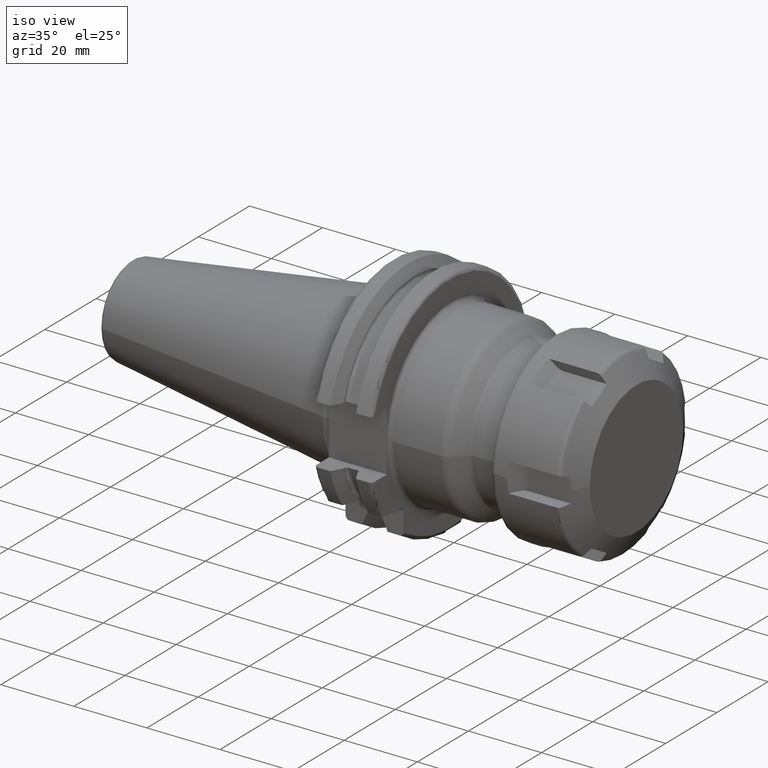
[diagram: clean part render]
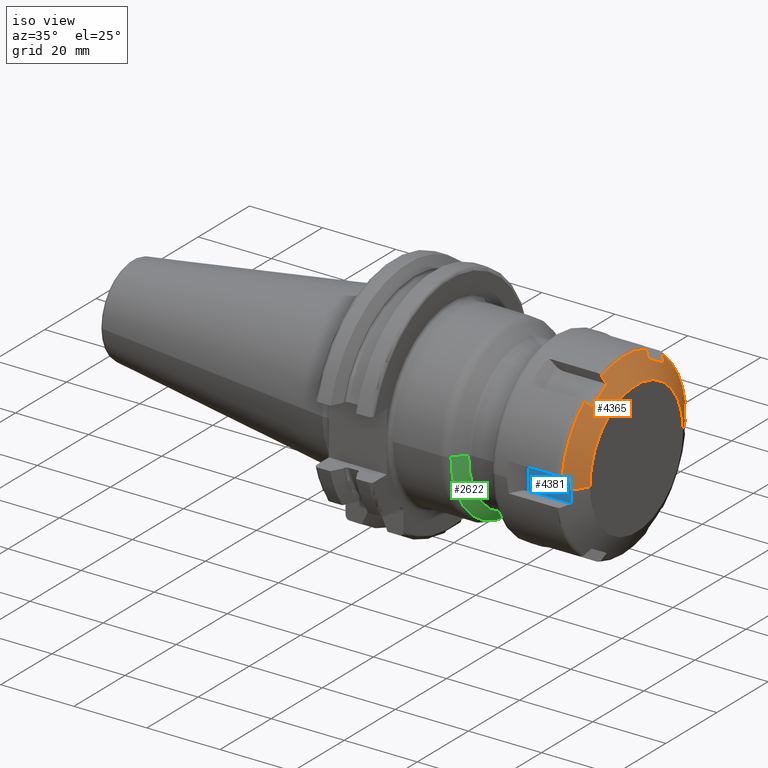
[diagram: same view with three faces highlighted in distinct colors, each labeled with its STEP entity id]
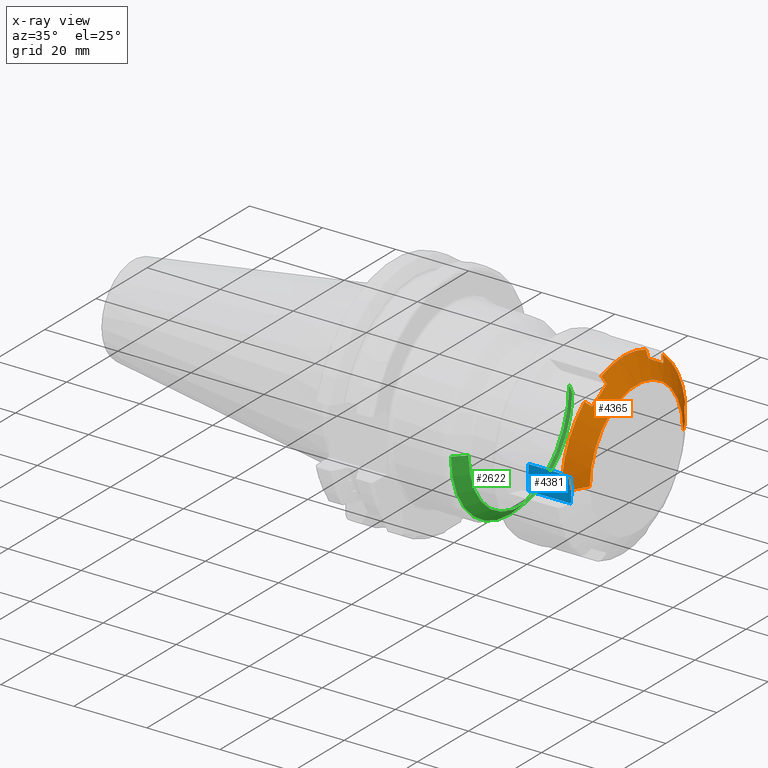
[diagram: x-ray of the same camera — body ghosted, the three highlighted faces saturated]
A machine part, iso view with three faces highlighted in distinct colors.
The next image is the same camera in x-ray (body ghosted, the three faces saturated) — at least one of them is partly hidden behind the body in this view.
Their STEP definitions:

[orange] entity #4365 — the highlighted conical surface has half-angle 60 deg.
#3302=DIRECTION('',(-5.E-1,-8.660254037844E-1,0.E0));
#3303=VECTOR('',#3302,4.561067126598E0);
#3304=CARTESIAN_POINT('',(2.25E1,-1.825E1,0.E0));
#3305=LINE('',#3304,#3303);
#3311=DIRECTION('',(-5.E-1,8.660254037844E-1,0.E0));
#3312=VECTOR('',#3311,4.561067126598E0);
#3313=CARTESIAN_POINT('',(2.25E1,1.825E1,0.E0));
#3314=LINE('',#3313,#3312);
#3595=CARTESIAN_POINT('',(2.007435737753E1,-2.22E1,3.35E0));
#3596=CARTESIAN_POINT('',(2.010642291935E1,-2.22E1,2.977782663007E0));
#3597=CARTESIAN_POINT('',(2.016009585532E1,-2.22E1,2.233360618265E0));
#3598=CARTESIAN_POINT('',(2.020864465134E1,-2.22E1,1.116836975823E0));
#3599=CARTESIAN_POINT('',(2.021946643670E1,-2.22E1,3.722962341463E-1));
#3600=CARTESIAN_POINT('',(2.021946643670E1,-2.22E1,-4.505137681520E-14));
#3602=CARTESIAN_POINT('',(1.896372960121E1,-2.407423620780E1,3.817299570546E0));
#3603=CARTESIAN_POINT('',(1.915154885340E1,-2.375738600462E1,3.738299942188E0));
#3604=CARTESIAN_POINT('',(1.952447514954E1,-2.312816444792E1,3.581417388109E0));
#3605=CARTESIAN_POINT('',(1.989196990744E1,-2.250789661449E1,3.426767247974E0));
#3606=CARTESIAN_POINT('',(2.007435737753E1,-2.22E1,3.35E0));
#3608=CARTESIAN_POINT('',(1.896372960121E1,0.E0,0.E0));
#3609=DIRECTION('',(-1.E0,0.E0,0.E0));
#3610=DIRECTION('',(0.E0,-9.876609726275E-1,1.566071618686E-1));
#3611=AXIS2_PLACEMENT_3D('',#3608,#3609,#3610);
#3613=CARTESIAN_POINT('',(2.007435737753E1,-1.400118510268E1,1.755076396401E1));
#3614=CARTESIAN_POINT('',(1.989202963548E1,-1.422154361045E1,1.777895187872E1));
#3615=CARTESIAN_POINT('',(1.952459463873E1,-1.466553630405E1,1.823871977204E1));
#3616=CARTESIAN_POINT('',(1.915160861205E1,-1.511608354504E1,1.870527509788E1));
#3617=CARTESIAN_POINT('',(1.896372960121E1,-1.534299650585E1,1.894025034738E1));
#3619=CARTESIAN_POINT('',(2.007435737753E1,-8.198814897322E0,2.090076396401E1));
#3620=CARTESIAN_POINT('',(2.013850261850E1,-8.843656557694E0,2.052846445781E1));
#3621=CARTESIAN_POINT('',(2.022485531472E1,-1.013317723897E1,1.978395934535E1));
#3622=CARTESIAN_POINT('',(2.022485360844E1,-1.206686210227E1,1.866754586900E1));
#3623=CARTESIAN_POINT('',(2.013850094754E1,-1.335636024026E1,1.792305377191E1));
#3624=CARTESIAN_POINT('',(2.007435737753E1,-1.400118510268E1,1.755076396401E1));
#3626=CARTESIAN_POINT('',(1.896372960121E1,-8.731239701949E0,2.275754991793E1));
#3627=CARTESIAN_POINT('',(1.915154885340E1,-8.641230285410E0,2.244364977861E1));
#3628=CARTESIAN_POINT('',(1.952447514954E1,-8.462483784300E0,2.182028664885E1));
#3629=CARTESIAN_POINT('',(1.989196990744E1,-8.286280817645E0,2.120579387789E1));
#3630=CARTESIAN_POINT('',(2.007435737753E1,-8.198814897322E0,2.090076396401E1));
#3632=CARTESIAN_POINT('',(1.896372960121E1,0.E0,0.E0));
#3633=DIRECTION('',(-1.E0,0.E0,0.E0));
#3634=DIRECTION('',(0.E0,-3.582047057210E-1,9.336430735561E-1));
#3635=AXIS2_PLACEMENT_3D('',#3632,#3633,#3634);
#3637=CARTESIAN_POINT('',(2.007435737753E1,8.198814897322E0,2.090076396401E1));
#3638=CARTESIAN_POINT('',(1.989202963548E1,8.286252174404E0,2.120569398704E1));
#3639=CARTESIAN_POINT('',(1.952459463873E1,8.462426503065E0,2.182008688545E1));
#3640=CARTESIAN_POINT('',(1.915160861205E1,8.641201647020E0,2.244354990467E1));
#3641=CARTESIAN_POINT('',(1.896372960121E1,8.731239701949E0,2.275754991793E1));
#3643=CARTESIAN_POINT('',(2.007435737753E1,1.400118510268E1,1.755076396401E1));
#3644=CARTESIAN_POINT('',(2.013850261850E1,1.335634344231E1,1.792306347021E1));
#3645=CARTESIAN_POINT('',(2.022485531472E1,1.206682276103E1,1.866756858268E1));
#3646=CARTESIAN_POINT('',(2.022485360844E1,1.013313789773E1,1.978398205903E1));
#3647=CARTESIAN_POINT('',(2.013850094754E1,8.843639759743E0,2.052847415612E1));
#3648=CARTESIAN_POINT('',(2.007435737753E1,8.198814897322E0,2.090076396401E1));
#3650=CARTESIAN_POINT('',(1.896372960121E1,1.534299650585E1,1.894025034738E1));
#3651=CARTESIAN_POINT('',(1.915154885340E1,1.511615571921E1,1.870534983642E1));
#3652=CARTESIAN_POINT('',(1.952447514954E1,1.466568066362E1,1.823886926074E1));
#3653=CARTESIAN_POINT('',(1.989196990744E1,1.422161579685E1,1.777902662992E1));
#3654=CARTESIAN_POINT('',(2.007435737753E1,1.400118510268E1,1.755076396401E1));
#3656=CARTESIAN_POINT('',(1.896372960121E1,0.E0,0.E0));
#3657=DIRECTION('',(-1.E0,0.E0,0.E0));
#3658=DIRECTION('',(0.E0,6.294562669065E-1,7.770359116876E-1));
#3659=AXIS2_PLACEMENT_3D('',#3656,#3657,#3658);
#3661=CARTESIAN_POINT('',(2.007435737753E1,2.22E1,3.35E0));
#3662=CARTESIAN_POINT('',(1.989202963548E1,2.250779578486E1,3.426742108322E0));
#3663=CARTESIAN_POINT('',(1.952459463873E1,2.312796280711E1,3.581367113410E0));
#3664=CARTESIAN_POINT('',(1.915160861205E1,2.375728519206E1,3.738274806794E0));
#3665=CARTESIAN_POINT('',(1.896372960121E1,2.407423620780E1,3.817299570546E0));
#3667=CARTESIAN_POINT('',(2.021946643670E1,2.22E1,0.E0));
#3668=CARTESIAN_POINT('',(2.021946643670E1,2.22E1,3.723412104007E-1));
#3669=CARTESIAN_POINT('',(2.020864224929E1,2.22E1,1.116942255784E0));
#3670=CARTESIAN_POINT('',(2.016008769471E1,2.22E1,2.233495806650E0));
#3671=CARTESIAN_POINT('',(2.010641792581E1,2.22E1,2.977840628173E0));
#3672=CARTESIAN_POINT('',(2.007435737753E1,2.22E1,3.35E0));
#3674=CARTESIAN_POINT('',(2.25E1,0.E0,0.E0));
#3675=DIRECTION('',(1.E0,0.E0,0.E0));
#3676=DIRECTION('',(0.E0,1.E0,0.E0));
#3677=AXIS2_PLACEMENT_3D('',#3674,#3675,#3676);
#3937=CARTESIAN_POINT('',(2.25E1,1.825E1,0.E0));
#3938=CARTESIAN_POINT('',(2.25E1,-1.825E1,0.E0));
#3939=VERTEX_POINT('',#3937);
#3940=VERTEX_POINT('',#3938);
#3949=VERTEX_POINT('',#3661);
#3950=VERTEX_POINT('',#3665);
#3951=VERTEX_POINT('',#3667);
#3965=VERTEX_POINT('',#3637);
#3966=VERTEX_POINT('',#3641);
#3967=VERTEX_POINT('',#3643);
#3968=VERTEX_POINT('',#3650);
#3980=VERTEX_POINT('',#3613);
#3981=VERTEX_POINT('',#3617);
#3982=VERTEX_POINT('',#3619);
#3983=VERTEX_POINT('',#3626);
#3995=VERTEX_POINT('',#3595);
#3996=VERTEX_POINT('',#3600);
#3997=VERTEX_POINT('',#3602);
#4334=CARTESIAN_POINT('',(2.073186480061E1,0.E0,0.E0));
#4335=DIRECTION('',(-1.E0,0.E0,0.E0));
#4336=DIRECTION('',(0.E0,1.E0,0.E0));
#4337=AXIS2_PLACEMENT_3D('',#4334,#4335,#4336);
#4338=CONICAL_SURFACE('',#4337,2.13125E1,6.E1);
#4340=ORIENTED_EDGE('',*,*,#4339,.F.);
#4342=ORIENTED_EDGE('',*,*,#4341,.F.);
#4343=ORIENTED_EDGE('',*,*,#4241,.T.);
#4345=ORIENTED_EDGE('',*,*,#4344,.F.);
#4347=ORIENTED_EDGE('',*,*,#4346,.F.);
#4349=ORIENTED_EDGE('',*,*,#4348,.F.);
#4350=ORIENTED_EDGE('',*,*,#4225,.T.);
#4352=ORIENTED_EDGE('',*,*,#4351,.F.);
#4353=ORIENTED_EDGE('',*,*,#4327,.F.);
#4354=ORIENTED_EDGE('',*,*,#4298,.F.);
#4355=ORIENTED_EDGE('',*,*,#4209,.T.);
#4357=ORIENTED_EDGE('',*,*,#4356,.F.);
#4359=ORIENTED_EDGE('',*,*,#4358,.F.);
#4360=ORIENTED_EDGE('',*,*,#4085,.F.);
#4361=ORIENTED_EDGE('',*,*,#4052,.T.);
#4362=ORIENTED_EDGE('',*,*,#4082,.T.);
#4363=EDGE_LOOP('',(#4340,#4342,#4343,#4345,#4347,#4349,#4350,#4352,#4353,#4354,
#4355,#4357,#4359,#4360,#4361,#4362));
#4364=FACE_OUTER_BOUND('',#4363,.F.);
#4365=ADVANCED_FACE('',(#4364),#4338,.T.);
#3601=B_SPLINE_CURVE_WITH_KNOTS('',3,(#3595,#3596,#3597,#3598,#3599,#3600),
.UNSPECIFIED.,.F.,.F.,(4,1,1,4),(0.E0,3.333333333333E-1,6.666666666667E-1,1.E0),
.UNSPECIFIED.);
#3607=B_SPLINE_CURVE_WITH_KNOTS('',3,(#3602,#3603,#3604,#3605,#3606),
.UNSPECIFIED.,.F.,.F.,(4,1,4),(0.E0,5.E-1,1.E0),.UNSPECIFIED.);
#3612=CIRCLE('',#3611,2.4375E1);
#3618=B_SPLINE_CURVE_WITH_KNOTS('',3,(#3613,#3614,#3615,#3616,#3617),
.UNSPECIFIED.,.F.,.F.,(4,1,4),(0.E0,5.E-1,1.E0),.UNSPECIFIED.);
#3625=B_SPLINE_CURVE_WITH_KNOTS('',3,(#3619,#3620,#3621,#3622,#3623,#3624),
.UNSPECIFIED.,.F.,.F.,(4,1,1,4),(0.E0,3.333333333333E-1,6.666666666667E-1,1.E0),
.UNSPECIFIED.);
#3631=B_SPLINE_CURVE_WITH_KNOTS('',3,(#3626,#3627,#3628,#3629,#3630),
.UNSPECIFIED.,.F.,.F.,(4,1,4),(0.E0,5.E-1,1.E0),.UNSPECIFIED.);
#3636=CIRCLE('',#3635,2.4375E1);
#3642=B_SPLINE_CURVE_WITH_KNOTS('',3,(#3637,#3638,#3639,#3640,#3641),
.UNSPECIFIED.,.F.,.F.,(4,1,4),(0.E0,5.E-1,1.E0),.UNSPECIFIED.);
#3649=B_SPLINE_CURVE_WITH_KNOTS('',3,(#3643,#3644,#3645,#3646,#3647,#3648),
.UNSPECIFIED.,.F.,.F.,(4,1,1,4),(0.E0,3.333333333333E-1,6.666666666667E-1,1.E0),
.UNSPECIFIED.);
#3655=B_SPLINE_CURVE_WITH_KNOTS('',3,(#3650,#3651,#3652,#3653,#3654),
.UNSPECIFIED.,.F.,.F.,(4,1,4),(0.E0,5.E-1,1.E0),.UNSPECIFIED.);
#3660=CIRCLE('',#3659,2.4375E1);
#3666=B_SPLINE_CURVE_WITH_KNOTS('',3,(#3661,#3662,#3663,#3664,#3665),
.UNSPECIFIED.,.F.,.F.,(4,1,4),(0.E0,5.E-1,1.E0),.UNSPECIFIED.);
#3673=B_SPLINE_CURVE_WITH_KNOTS('',3,(#3667,#3668,#3669,#3670,#3671,#3672),
.UNSPECIFIED.,.F.,.F.,(4,1,1,4),(0.E0,3.333333333333E-1,6.666666666667E-1,1.E0),
.UNSPECIFIED.);
#3678=CIRCLE('',#3677,1.825E1);
#4052=EDGE_CURVE('',#3939,#3940,#3678,.T.);
#4082=EDGE_CURVE('',#3940,#3996,#3305,.T.);
#4085=EDGE_CURVE('',#3939,#3951,#3314,.T.);
#4209=EDGE_CURVE('',#3968,#3950,#3660,.T.);
#4225=EDGE_CURVE('',#3983,#3966,#3636,.T.);
#4241=EDGE_CURVE('',#3997,#3981,#3612,.T.);
#4298=EDGE_CURVE('',#3968,#3967,#3655,.T.);
#4327=EDGE_CURVE('',#3967,#3965,#3649,.T.);
#4339=EDGE_CURVE('',#3995,#3996,#3601,.T.);
#4341=EDGE_CURVE('',#3997,#3995,#3607,.T.);
#4344=EDGE_CURVE('',#3980,#3981,#3618,.T.);
#4346=EDGE_CURVE('',#3982,#3980,#3625,.T.);
#4348=EDGE_CURVE('',#3983,#3982,#3631,.T.);
#4351=EDGE_CURVE('',#3965,#3966,#3642,.T.);
#4356=EDGE_CURVE('',#3949,#3950,#3666,.T.);
#4358=EDGE_CURVE('',#3951,#3949,#3673,.T.);

[blue] entity #4381 — the highlighted planar face has unit normal (0, 1, 0).
#3289=CARTESIAN_POINT('',(2.007435737753E1,-2.22E1,-3.35E0));
#3295=CARTESIAN_POINT('',(2.021946643670E1,-2.22E1,-4.505137681520E-14));
#3296=CARTESIAN_POINT('',(2.021946643670E1,-2.22E1,-3.723412104007E-1));
#3297=CARTESIAN_POINT('',(2.020864224929E1,-2.22E1,-1.116942255784E0));
#3298=CARTESIAN_POINT('',(2.016008769471E1,-2.22E1,-2.233495806650E0));
#3299=CARTESIAN_POINT('',(2.010641792581E1,-2.22E1,-2.977840628173E0));
#3300=CARTESIAN_POINT('',(2.007435737753E1,-2.22E1,-3.35E0));
#3595=CARTESIAN_POINT('',(2.007435737753E1,-2.22E1,3.35E0));
#3596=CARTESIAN_POINT('',(2.010642291935E1,-2.22E1,2.977782663007E0));
#3597=CARTESIAN_POINT('',(2.016009585532E1,-2.22E1,2.233360618265E0));
#3598=CARTESIAN_POINT('',(2.020864465134E1,-2.22E1,1.116836975823E0));
#3599=CARTESIAN_POINT('',(2.021946643670E1,-2.22E1,3.722962341463E-1));
#3600=CARTESIAN_POINT('',(2.021946643670E1,-2.22E1,-4.505137681520E-14));
#3679=DIRECTION('',(0.E0,0.E0,1.E0));
#3680=VECTOR('',#3679,6.7E0);
#3681=CARTESIAN_POINT('',(8.408376618407E0,-2.22E1,-3.35E0));
#3682=LINE('',#3681,#3680);
#3683=DIRECTION('',(-1.E0,0.E0,0.E0));
#3684=VECTOR('',#3683,1.166598075912E1);
#3685=CARTESIAN_POINT('',(2.007435737753E1,-2.22E1,-3.35E0));
#3686=LINE('',#3685,#3684);
#3691=CARTESIAN_POINT('',(8.408376618407E0,-2.22E1,3.35E0));
#3697=DIRECTION('',(-1.E0,0.E0,0.E0));
#3698=VECTOR('',#3697,1.166598075912E1);
#3699=CARTESIAN_POINT('',(2.007435737753E1,-2.22E1,3.35E0));
#3700=LINE('',#3699,#3698);
#3995=VERTEX_POINT('',#3595);
#3996=VERTEX_POINT('',#3600);
#3998=VERTEX_POINT('',#3289);
#4007=VERTEX_POINT('',#3691);
#4008=CARTESIAN_POINT('',(8.408376618407E0,-2.22E1,-3.35E0));
#4009=VERTEX_POINT('',#4008);
#4366=CARTESIAN_POINT('',(2.25E1,-2.22E1,-3.35E0));
#4367=DIRECTION('',(0.E0,1.E0,0.E0));
#4368=DIRECTION('',(0.E0,0.E0,1.E0));
#4369=AXIS2_PLACEMENT_3D('',#4366,#4367,#4368);
#4370=PLANE('',#4369);
#4372=ORIENTED_EDGE('',*,*,#4371,.T.);
#4374=ORIENTED_EDGE('',*,*,#4373,.F.);
#4375=ORIENTED_EDGE('',*,*,#4339,.T.);
#4376=ORIENTED_EDGE('',*,*,#4080,.T.);
#4378=ORIENTED_EDGE('',*,*,#4377,.T.);
#4379=EDGE_LOOP('',(#4372,#4374,#4375,#4376,#4378));
#4380=FACE_OUTER_BOUND('',#4379,.F.);
#4381=ADVANCED_FACE('',(#4380),#4370,.F.);
#3301=B_SPLINE_CURVE_WITH_KNOTS('',3,(#3295,#3296,#3297,#3298,#3299,#3300),
.UNSPECIFIED.,.F.,.F.,(4,1,1,4),(0.E0,3.333333333333E-1,6.666666666667E-1,1.E0),
.UNSPECIFIED.);
#3601=B_SPLINE_CURVE_WITH_KNOTS('',3,(#3595,#3596,#3597,#3598,#3599,#3600),
.UNSPECIFIED.,.F.,.F.,(4,1,1,4),(0.E0,3.333333333333E-1,6.666666666667E-1,1.E0),
.UNSPECIFIED.);
#4080=EDGE_CURVE('',#3996,#3998,#3301,.T.);
#4339=EDGE_CURVE('',#3995,#3996,#3601,.T.);
#4371=EDGE_CURVE('',#4009,#4007,#3682,.T.);
#4373=EDGE_CURVE('',#3995,#4007,#3700,.T.);
#4377=EDGE_CURVE('',#3998,#4009,#3686,.T.);

[green] entity #2622 — the highlighted conical surface has half-angle 45 deg.
#993=CARTESIAN_POINT('',(3.537867965644E1,0.E0,0.E0));
#994=DIRECTION('',(-1.E0,0.E0,0.E0));
#995=DIRECTION('',(0.E0,1.E0,0.E0));
#996=AXIS2_PLACEMENT_3D('',#993,#994,#995);
#998=DIRECTION('',(-7.071067811865E-1,-7.071067811865E-1,-3.795799663427E-12));
#999=VECTOR('',#998,3.999999999999E0);
#1000=CARTESIAN_POINT('',(3.820710678119E1,-2.029289321881E1,
4.642389067285E-14));
#1001=LINE('',#1000,#999);
#1002=CARTESIAN_POINT('',(3.820710678119E1,0.E0,0.E0));
#1003=DIRECTION('',(1.E0,0.E0,0.E0));
#1004=DIRECTION('',(0.E0,-1.E0,0.E0));
#1005=AXIS2_PLACEMENT_3D('',#1002,#1003,#1004);
#1007=DIRECTION('',(-7.071067811865E-1,7.071067811865E-1,3.793356183828E-12));
#1008=VECTOR('',#1007,3.999999999999E0);
#1009=CARTESIAN_POINT('',(3.820710678119E1,2.029289321881E1,
-4.935583301100E-14));
#1010=LINE('',#1009,#1008);
#1542=CARTESIAN_POINT('',(3.537867965644E1,2.312132034356E1,0.E0));
#1543=CARTESIAN_POINT('',(3.537867965644E1,-2.312132034356E1,0.E0));
#1544=VERTEX_POINT('',#1542);
#1545=VERTEX_POINT('',#1543);
#1569=CARTESIAN_POINT('',(3.820710678119E1,-2.029289321881E1,0.E0));
#1570=CARTESIAN_POINT('',(3.820710678119E1,2.029289321881E1,0.E0));
#1571=VERTEX_POINT('',#1569);
#1572=VERTEX_POINT('',#1570);
#2608=CARTESIAN_POINT('',(3.679289321881E1,0.E0,0.E0));
#2609=DIRECTION('',(-1.E0,0.E0,0.E0));
#2610=DIRECTION('',(0.E0,1.E0,0.E0));
#2611=AXIS2_PLACEMENT_3D('',#2608,#2609,#2610);
#2612=CONICAL_SURFACE('',#2611,2.170710678119E1,4.5E1);
#2613=ORIENTED_EDGE('',*,*,#1855,.T.);
#2615=ORIENTED_EDGE('',*,*,#2614,.F.);
#2617=ORIENTED_EDGE('',*,*,#2616,.T.);
#2619=ORIENTED_EDGE('',*,*,#2618,.T.);
#2620=EDGE_LOOP('',(#2613,#2615,#2617,#2619));
#2621=FACE_OUTER_BOUND('',#2620,.F.);
#2622=ADVANCED_FACE('',(#2621),#2612,.T.);
#997=CIRCLE('',#996,2.312132034356E1);
#1006=CIRCLE('',#1005,2.029289321881E1);
#1855=EDGE_CURVE('',#1544,#1545,#997,.T.);
#2614=EDGE_CURVE('',#1571,#1545,#1001,.T.);
#2616=EDGE_CURVE('',#1571,#1572,#1006,.T.);
#2618=EDGE_CURVE('',#1572,#1544,#1010,.T.);